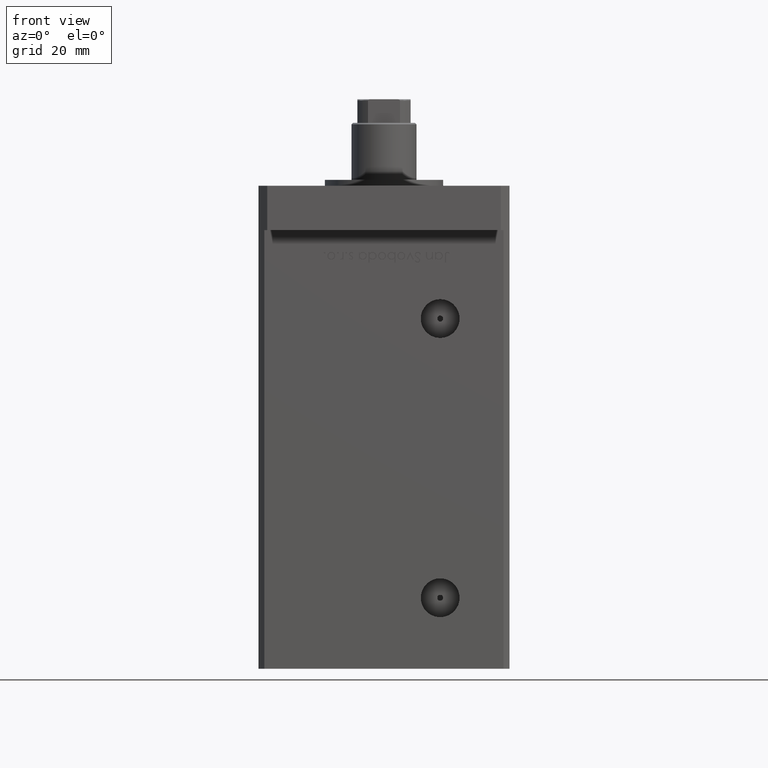
[diagram: clean part render]
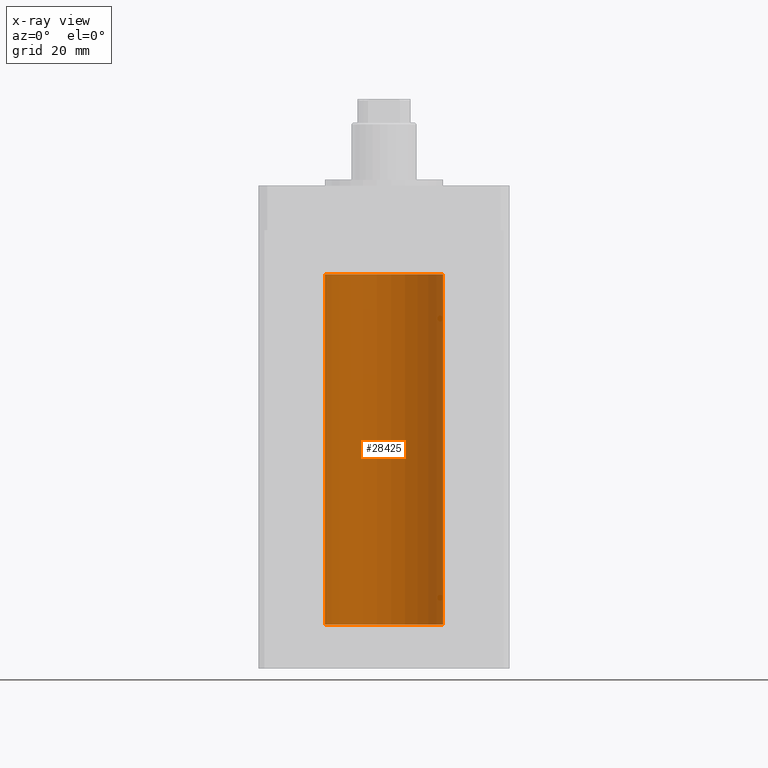
[diagram: x-ray — body ghosted, one internal face saturated and labeled with its STEP entity id]
A machine part, front view, then the same camera in x-ray: the body is ghosted and one INTERNAL B-rep face — a face not visible from any outside direction — is saturated and labeled: STEP entity #28425.
In plain terms, the highlighted cylindrical surface (partial cylindrical patch) has radius 20 mm, axis along (-0, -0, -1).
Its self-contained STEP definition (entity closure, byte-faithful):
#1800 = CARTESIAN_POINT ( 'NONE',  ( 0.000000000000000000, 0.000000000000000000, 118.5000000000000000 ) ) ;
#2362 = AXIS2_PLACEMENT_3D ( 'NONE', #1800, #30026, #9127 ) ;
#4356 = DIRECTION ( 'NONE',  ( 1.000000000000000000, 0.000000000000000000, 0.000000000000000000 ) ) ;
#4594 = ORIENTED_EDGE ( 'NONE', *, *, #10616, .F. ) ;
#5087 = VECTOR ( 'NONE', #41666, 1000.000000000000000 ) ;
#6195 = CIRCLE ( 'NONE', #43446, 20.00000000000000000 ) ;
#6391 = ORIENTED_EDGE ( 'NONE', *, *, #41260, .F. ) ;
#9127 = DIRECTION ( 'NONE',  ( -1.000000000000000000, 0.000000000000000000, 0.000000000000000000 ) ) ;
#9394 = EDGE_LOOP ( 'NONE', ( #4594, #28063, #36125, #6391 ) ) ;
#10616 = EDGE_CURVE ( 'NONE', #33496, #46975, #45726, .T. ) ;
#14149 = CARTESIAN_POINT ( 'NONE',  ( 0.000000000000000000, 0.000000000000000000, 0.000000000000000000 ) ) ;
#15179 = VERTEX_POINT ( 'NONE', #23572 ) ;
#16684 = CARTESIAN_POINT ( 'NONE',  ( 20.00000000000000000, 2.449293598294706513E-15, 118.5000000000000000 ) ) ;
#23544 = CIRCLE ( 'NONE', #51260, 20.00000000000000000 ) ;
#23572 = CARTESIAN_POINT ( 'NONE',  ( -20.00000000000000000, 0.000000000000000000, 0.000000000000000000 ) ) ;
#25131 = CARTESIAN_POINT ( 'NONE',  ( 20.00000000000000000, 2.449293598294706513E-15, 118.5000000000000000 ) ) ;
#25172 = EDGE_CURVE ( 'NONE', #52177, #15179, #37275, .T. ) ;
#28063 = ORIENTED_EDGE ( 'NONE', *, *, #39934, .T. ) ;
#28425 = ADVANCED_FACE ( 'NONE', ( #42764 ), #38425, .F. ) ;
#30026 = DIRECTION ( 'NONE',  ( -0.000000000000000000, -0.000000000000000000, -1.000000000000000000 ) ) ;
#30142 = CARTESIAN_POINT ( 'NONE',  ( 0.000000000000000000, 0.000000000000000000, 118.5000000000000000 ) ) ;
#30704 = DIRECTION ( 'NONE',  ( 1.000000000000000000, 0.000000000000000000, 0.000000000000000000 ) ) ;
#33496 = VERTEX_POINT ( 'NONE', #16684 ) ;
#34168 = CARTESIAN_POINT ( 'NONE',  ( 20.00000000000000000, 2.449293598294706513E-15, 0.000000000000000000 ) ) ;
#34216 = DIRECTION ( 'NONE',  ( -0.000000000000000000, 0.000000000000000000, 1.000000000000000000 ) ) ;
#36125 = ORIENTED_EDGE ( 'NONE', *, *, #25172, .T. ) ;
#37275 = LINE ( 'NONE', #46749, #44710 ) ;
#38425 = CYLINDRICAL_SURFACE ( 'NONE', #2362, 20.00000000000000000 ) ;
#39934 = EDGE_CURVE ( 'NONE', #33496, #52177, #6195, .T. ) ;
#41260 = EDGE_CURVE ( 'NONE', #46975, #15179, #23544, .T. ) ;
#41528 = DIRECTION ( 'NONE',  ( -0.000000000000000000, 0.000000000000000000, 1.000000000000000000 ) ) ;
#41666 = DIRECTION ( 'NONE',  ( -0.000000000000000000, -0.000000000000000000, -1.000000000000000000 ) ) ;
#42764 = FACE_OUTER_BOUND ( 'NONE', #9394, .T. ) ;
#43446 = AXIS2_PLACEMENT_3D ( 'NONE', #30142, #41528, #4356 ) ;
#44710 = VECTOR ( 'NONE', #50005, 1000.000000000000000 ) ;
#45726 = LINE ( 'NONE', #25131, #5087 ) ;
#46749 = CARTESIAN_POINT ( 'NONE',  ( -20.00000000000000000, 0.000000000000000000, 118.5000000000000000 ) ) ;
#46975 = VERTEX_POINT ( 'NONE', #34168 ) ;
#47349 = CARTESIAN_POINT ( 'NONE',  ( -20.00000000000000000, 0.000000000000000000, 118.5000000000000000 ) ) ;
#50005 = DIRECTION ( 'NONE',  ( -0.000000000000000000, -0.000000000000000000, -1.000000000000000000 ) ) ;
#51260 = AXIS2_PLACEMENT_3D ( 'NONE', #14149, #34216, #30704 ) ;
#52177 = VERTEX_POINT ( 'NONE', #47349 ) ;